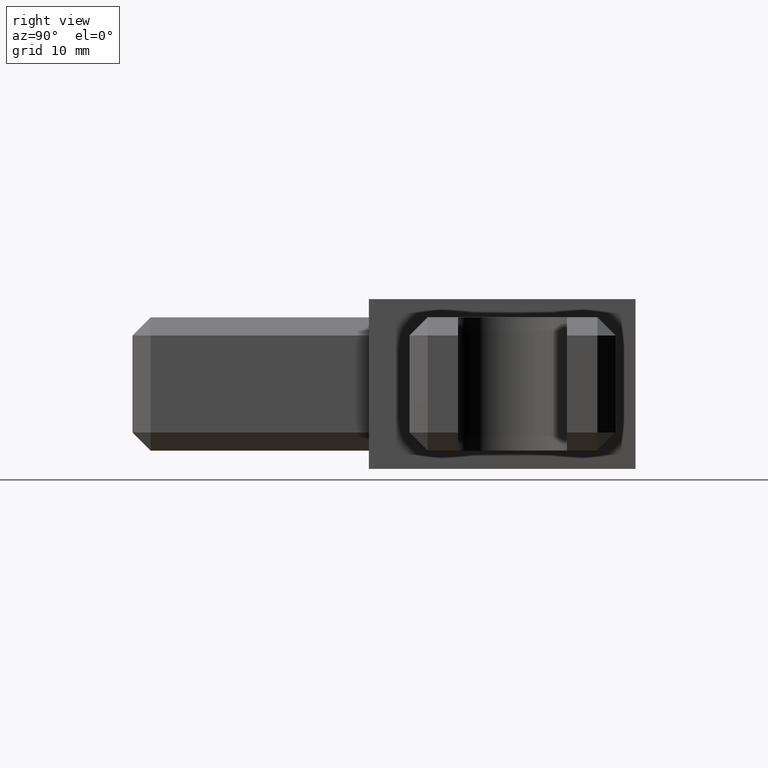
[diagram: clean part render]
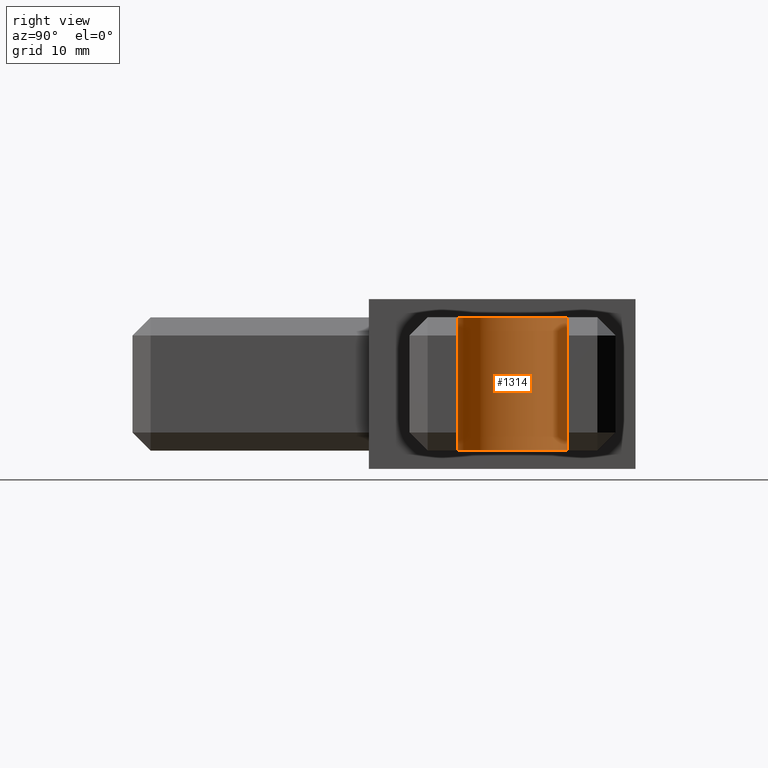
[diagram: same view with one face highlighted and labeled with its STEP entity id]
A machine part, right view. The second image highlights one B-rep face of the part: STEP entity #1314.
In plain terms, the highlighted cylindrical surface (partial cylindrical patch) has radius 4.5 mm, axis along (-0, -0, 1).
Its self-contained STEP definition (entity closure, byte-faithful):
#20 = DIRECTION ( 'NONE',  ( -0.0000000000000000000, -0.0000000000000000000, 1.000000000000000000 ) ) ;
#34 = CARTESIAN_POINT ( 'NONE',  ( 516.2937601056900100, 410.5950700072845100, 23.55501611203464700 ) ) ;
#51 = LINE ( 'NONE', #34, #1425 ) ;
#73 = CARTESIAN_POINT ( 'NONE',  ( 516.2937601056900100, 401.5950700072845100, 23.55501611203464700 ) ) ;
#79 = CARTESIAN_POINT ( 'NONE',  ( 516.2937601056900100, 406.0950700072845100, 18.20501611203464900 ) ) ;
#83 = DIRECTION ( 'NONE',  ( -0.0000000000000000000, -0.0000000000000000000, 1.000000000000000000 ) ) ;
#87 = DIRECTION ( 'NONE',  ( 1.000000000000000000, 0.0000000000000000000, 0.0000000000000000000 ) ) ;
#89 = LINE ( 'NONE', #73, #1511 ) ;
#90 = DIRECTION ( 'NONE',  ( -0.0000000000000000000, -0.0000000000000000000, -1.000000000000000000 ) ) ;
#155 = DIRECTION ( 'NONE',  ( -0.0000000000000000000, -0.0000000000000000000, 1.000000000000000000 ) ) ;
#166 = CARTESIAN_POINT ( 'NONE',  ( 516.2937601056900100, 406.0950700072845100, 23.55501611203464700 ) ) ;
#172 = FACE_OUTER_BOUND ( 'NONE', #896, .T. ) ;
#192 = CYLINDRICAL_SURFACE ( 'NONE', #1494, 4.499999999999948500 ) ;
#197 = DIRECTION ( 'NONE',  ( 1.000000000000000000, 0.0000000000000000000, 0.0000000000000000000 ) ) ;
#317 = EDGE_CURVE ( 'NONE', #635, #632, #1353, .T. ) ;
#388 = CARTESIAN_POINT ( 'NONE',  ( 516.2937601056900100, 401.5950700072845100, 18.20501611203464900 ) ) ;
#628 = VERTEX_POINT ( 'NONE', #1210 ) ;
#632 = VERTEX_POINT ( 'NONE', #1208 ) ;
#635 = VERTEX_POINT ( 'NONE', #1212 ) ;
#648 = ORIENTED_EDGE ( 'NONE', *, *, #1282, .T. ) ;
#665 = VERTEX_POINT ( 'NONE', #388 ) ;
#702 = ORIENTED_EDGE ( 'NONE', *, *, #1292, .F. ) ;
#705 = ORIENTED_EDGE ( 'NONE', *, *, #317, .T. ) ;
#751 = ORIENTED_EDGE ( 'NONE', *, *, #1295, .T. ) ;
#896 = EDGE_LOOP ( 'NONE', ( #648, #705, #702, #751 ) ) ;
#1030 = CARTESIAN_POINT ( 'NONE',  ( 516.2937601056900100, 406.0950700072845100, 29.20501611203465200 ) ) ;
#1047 = DIRECTION ( 'NONE',  ( -0.0000000000000000000, -0.0000000000000000000, 1.000000000000000000 ) ) ;
#1050 = DIRECTION ( 'NONE',  ( -1.000000000000000000, 0.0000000000000000000, 0.0000000000000000000 ) ) ;
#1208 = CARTESIAN_POINT ( 'NONE',  ( 516.2937601056900100, 401.5950700072845100, 29.20501611203465200 ) ) ;
#1210 = CARTESIAN_POINT ( 'NONE',  ( 516.2937601056900100, 410.5950700072845100, 18.20501611203464900 ) ) ;
#1212 = CARTESIAN_POINT ( 'NONE',  ( 516.2937601056900100, 410.5950700072845100, 29.20501611203465200 ) ) ;
#1282 = EDGE_CURVE ( 'NONE', #628, #635, #51, .T. ) ;
#1292 = EDGE_CURVE ( 'NONE', #665, #632, #89, .T. ) ;
#1295 = EDGE_CURVE ( 'NONE', #665, #628, #1497, .T. ) ;
#1314 = ADVANCED_FACE ( 'NONE', ( #172 ), #192, .F. ) ;
#1338 = AXIS2_PLACEMENT_3D ( 'NONE', #1030, #1047, #1050 ) ;
#1353 = CIRCLE ( 'NONE', #1338, 4.499999999999948500 ) ;
#1425 = VECTOR ( 'NONE', #20, 1000.000000000000000 ) ;
#1492 = AXIS2_PLACEMENT_3D ( 'NONE', #79, #90, #87 ) ;
#1494 = AXIS2_PLACEMENT_3D ( 'NONE', #166, #155, #197 ) ;
#1497 = CIRCLE ( 'NONE', #1492, 4.499999999999948500 ) ;
#1511 = VECTOR ( 'NONE', #83, 1000.000000000000000 ) ;